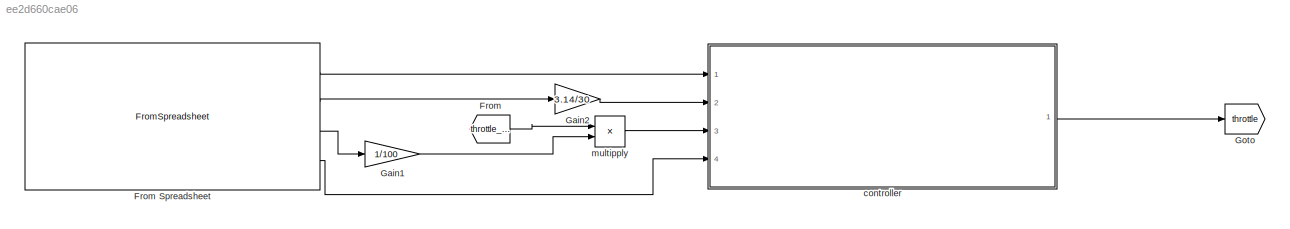
MODEL slx_ee2d660cae06
KIND model
CONFIG AbsTol = auto
CONFIG EnableMultiTasking = off
CONFIG FixedStep = auto
CONFIG MaxStep = auto
CONFIG MinStep = auto
CONFIG RelTol = 1e-3
CONFIG SampleTimeConstraint = Unconstrained
CONFIG SolverName = VariableStepAuto
CONFIG StartTime = 0.0
CONFIG StopTime = 48
BLOCK [From] From
  GotoTag = throttle_factor
  TagVisibility = global
BLOCK [FromSpreadsheet] From Spreadsheet
  FileName = <userpath>\rms stuff\projects\traction control\optimumlap_simulations\simulation_results(uff).csv
  Ports = [0, 4]
  SheetName = simulation_results(uff)
BLOCK [Gain] Gain1
  Gain = 1/100
BLOCK [Gain] Gain2
  Gain = 3.14/30
BLOCK [Goto] Goto
  GotoTag = throttle
  TagVisibility = global
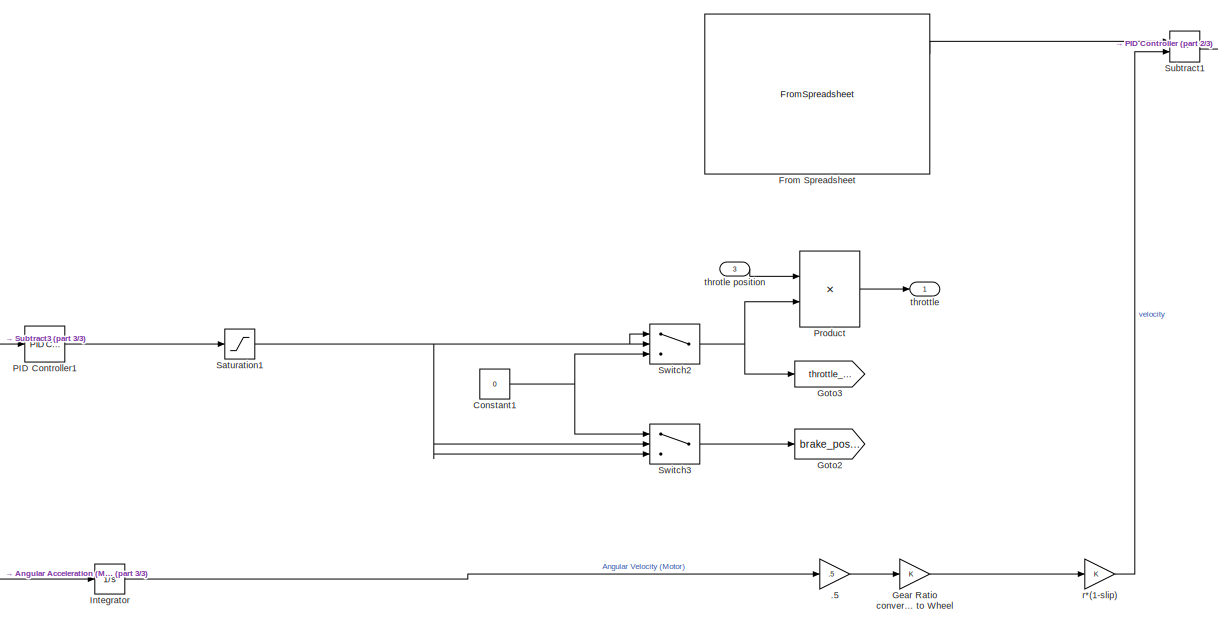
[diagram: controller - part 1/3, center side, full height]
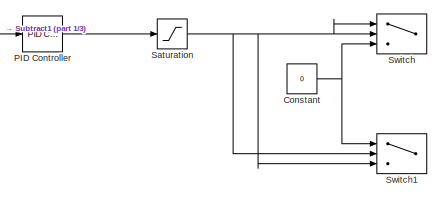
[diagram: controller - part 2/3, top right region]
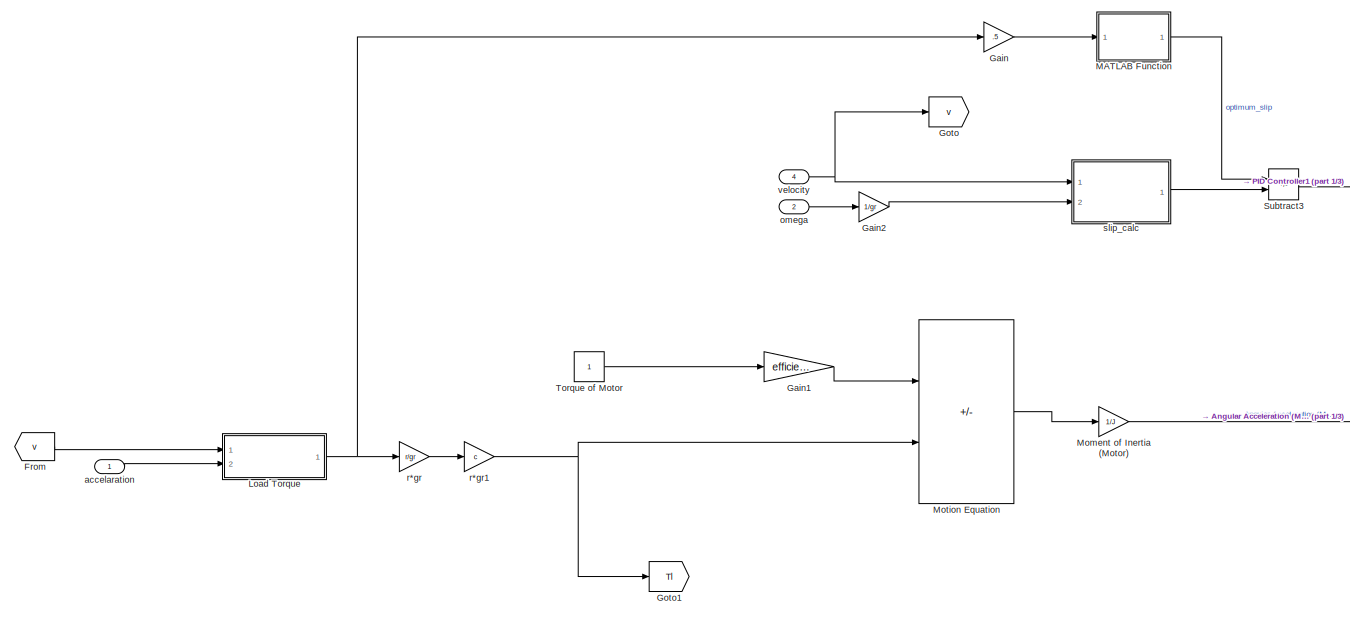
[diagram: controller - part 3/3, left side, full height]
BLOCK [SubSystem] controller
  Ports = [4, 1]
  RequestExecContextInheritance = off
BLOCK [Gain] controller/.5
  Commented = on
  Gain = .5
BLOCK [Constant] controller/Constant
  Commented = on
  Value = 0
BLOCK [Constant] controller/Constant1
  Value = 0
BLOCK [From] controller/From
  GotoTag = v
BLOCK [FromSpreadsheet] controller/From Spreadsheet
  Commented = on
  FileName = <userpath>\rms stuff\projects\traction control\optimumlap_simulations\simulation_resultsssss.csv
  Ports = [0, 3]
  SheetName = simulation_resultsssss
BLOCK [Gain] controller/Gain
  Gain = .5
BLOCK [Gain] controller/Gain1
  Commented = on
  Gain = efficiency
BLOCK [Gain] controller/Gain2
  Gain = 1/gr
BLOCK [Gain] controller/Gear Ratio conversion to Wheel 
  Commented = on
BLOCK [Goto] controller/Goto
  GotoTag = v
BLOCK [Goto] controller/Goto1
  Commented = on
  GotoTag = Tl
  TagVisibility = global
BLOCK [Goto] controller/Goto2
  GotoTag = brake_position
  TagVisibility = global
BLOCK [Goto] controller/Goto3
  GotoTag = throttle_factor
  TagVisibility = global
BLOCK [Integrator] controller/Integrator
  Commented = on
  Ports = [1, 1]
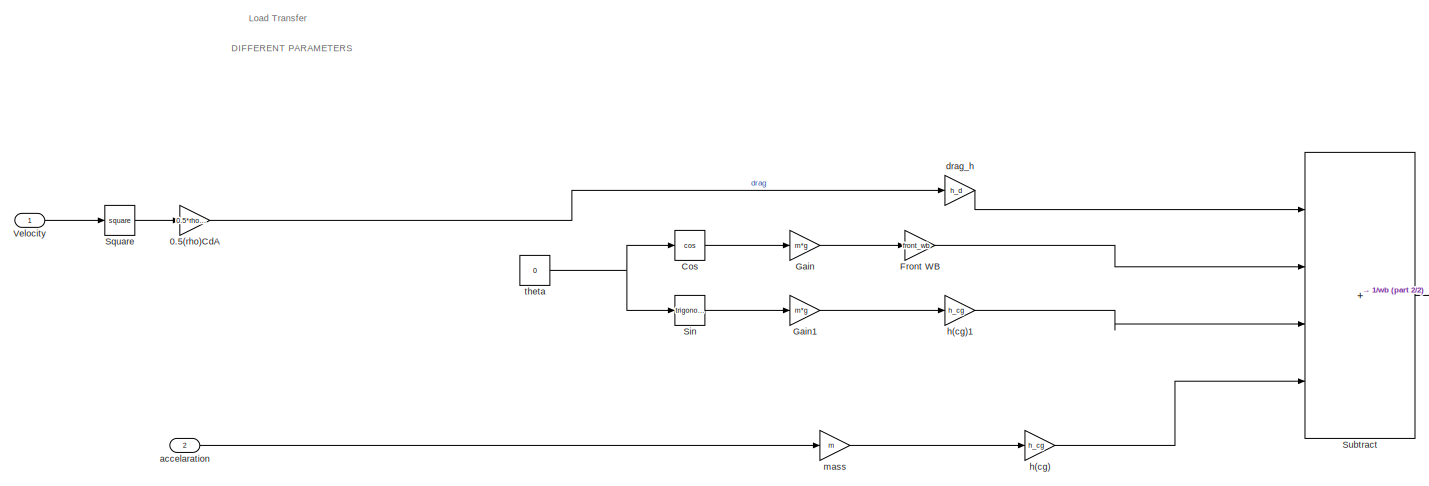
[diagram: controller/Load Torque - part 1/2, most of the canvas]
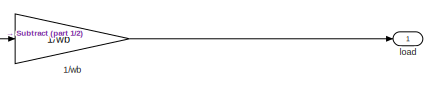
[diagram: controller/Load Torque - part 2/2, middle right region]
BLOCK [SubSystem] controller/Load Torque
  Ports = [2, 1]
  RequestExecContextInheritance = off
BLOCK [Gain] controller/Load Torque/0.5(rho)CdA
  Gain = 0.5*rho*Cd*A
BLOCK [Gain] controller/Load Torque/1//wb
  Gain = 1/wb
BLOCK [Trigonometry] controller/Load Torque/Cos
  Operator = cos
  Ports = [1, 1]
BLOCK [Gain] controller/Load Torque/Front WB
  Gain = front_wb
BLOCK [Gain] controller/Load Torque/Gain
  Gain = m*g
BLOCK [Gain] controller/Load Torque/Gain1
  Gain = m*g
BLOCK [Trigonometry] controller/Load Torque/Sin
  Ports = [1, 1]
BLOCK [Math] controller/Load Torque/Square
  Operator = square
  Ports = [1, 1]
BLOCK [Sum] controller/Load Torque/Subtract
  IconShape = rectangular
  Inputs = ++++
  Ports = [4, 1]
BLOCK [Inport] controller/Load Torque/Velocity
BLOCK [Inport] controller/Load Torque/accelaration
  Port = 2
BLOCK [Gain] controller/Load Torque/drag_h
  Gain = h_d
BLOCK [Gain] controller/Load Torque/h(cg)
  Gain = h_cg
BLOCK [Gain] controller/Load Torque/h(cg)1
  Gain = h_cg
BLOCK [Outport] controller/Load Torque/load
BLOCK [Gain] controller/Load Torque/mass
  Gain = m
BLOCK [Constant] controller/Load Torque/theta
  Value = 0
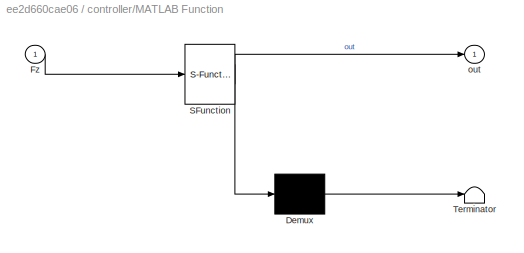
BLOCK [SubSystem] controller/MATLAB Function
  ErrorFcn = Stateflow.Translate.translate
  PermitHierarchicalResolution = ExplicitOnly
  Ports = [1, 1]
  RequestExecContextInheritance = off
  SFBlockType = MATLAB Function
  TreatAsAtomicUnit = on
BLOCK [Demux] controller/MATLAB Function/ Demux 
  Outputs = 1
  Ports = [1, 1]
BLOCK [S-Function] controller/MATLAB Function/ SFunction 
  EnableBusSupport = on
  FunctionName = sf_sfun
  PortCounts = [1 2]
  Ports = [1, 2]
  SFcnIsStateOwnerBlock = off
  SFunctionDeploymentMode = off
  Tag = Stateflow S-Function 2
BLOCK [Terminator] controller/MATLAB Function/ Terminator 
BLOCK [Inport] controller/MATLAB Function/Fz
BLOCK [Outport] controller/MATLAB Function/out
BLOCK [Gain] controller/Moment of Inertia (Motor)
  Commented = on
  Gain = 1/J
BLOCK [Sum] controller/Motion Equation
  Commented = on
  IconShape = rectangular
  Inputs = +-
  Ports = [2, 1]
BLOCK [Reference] controller/PID Controller  REF=slpidlib/PID Controller
  Commented = on
  Ports = [1, 1]
  SourceBlock = slpidlib/PID Controller
  SourceProductBaseCode = SL
  SourceType = PID 1dof
BLOCK [Reference] controller/PID Controller1  REF=slpidlib/PID Controller
  Ports = [1, 1]
  SourceBlock = slpidlib/PID Controller
  SourceProductBaseCode = SL
  SourceType = PID 1dof
BLOCK [Product] controller/Product
  Ports = [2, 1]
BLOCK [Saturate] controller/Saturation
  Commented = on
  LowerLimit = -1
  UpperLimit = 1
BLOCK [Saturate] controller/Saturation1
  LowerLimit = -1
  UpperLimit = 1
BLOCK [Sum] controller/Subtract1
  Commented = on
  IconShape = rectangular
  Inputs = +-
  Ports = [2, 1]
BLOCK [Sum] controller/Subtract3
  IconShape = rectangular
  Inputs = +-
  Ports = [2, 1]
BLOCK [Switch] controller/Switch
  Commented = on
  Criteria = u2 > Threshold
  InputSameDT = off
  SaturateOnIntegerOverflow = off
BLOCK [Switch] controller/Switch1
  Commented = on
  Criteria = u2 > Threshold
  InputSameDT = off
  SaturateOnIntegerOverflow = off
BLOCK [Switch] controller/Switch2
  Criteria = u2 > Threshold
  InputSameDT = off
  SaturateOnIntegerOverflow = off
BLOCK [Switch] controller/Switch3
  Criteria = u2 > Threshold
  InputSameDT = off
  SaturateOnIntegerOverflow = off
BLOCK [Constant] controller/Torque of Motor
  Commented = on
BLOCK [Inport] controller/accelaration
BLOCK [Inport] controller/omega
  Port = 2
BLOCK [Gain] controller/r*(1-slip)
  Commented = on
BLOCK [Gain] controller/r*gr
  Commented = on
  Gain = r/gr
BLOCK [Gain] controller/r*gr1
  Commented = on
  Gain = c
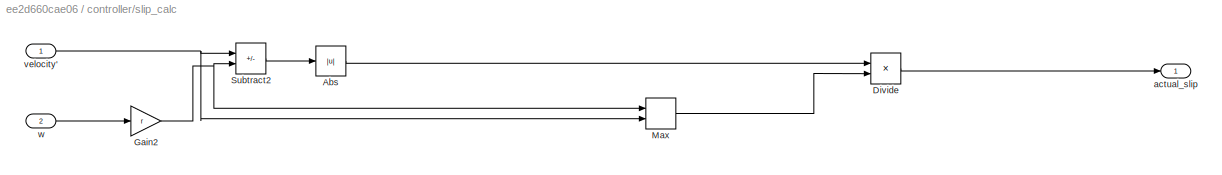
BLOCK [SubSystem] controller/slip_calc
  Ports = [2, 1]
  RequestExecContextInheritance = off
BLOCK [Abs] controller/slip_calc/Abs
  SaturateOnIntegerOverflow = off
BLOCK [Product] controller/slip_calc/Divide
  Inputs = */
  Ports = [2, 1]
BLOCK [Gain] controller/slip_calc/Gain2
  Gain = r
BLOCK [MinMax] controller/slip_calc/Max
  Function = max
  Inputs = 2
  Ports = [2, 1]
BLOCK [Sum] controller/slip_calc/Subtract2
  IconShape = rectangular
  Inputs = +-
  Ports = [2, 1]
BLOCK [Outport] controller/slip_calc/actual_slip
BLOCK [Inport] controller/slip_calc/velocity'
BLOCK [Inport] controller/slip_calc/w
  Port = 2
BLOCK [Inport] controller/throtle position
  Port = 3
BLOCK [Outport] controller/throttle
BLOCK [Inport] controller/velocity
  Port = 4
BLOCK [Product] multipply
  Inputs = **
  Ports = [2, 1]
ANNOTATION controller/Load Torque: DIFFERENT PARAMETERS
ANNOTATION controller/Load Torque: Load Transfer
LINE From Spreadsheet:1 -> controller:1
LINE From Spreadsheet:2 -> Gain2:1
LINE From Spreadsheet:3 -> Gain1:1
LINE From Spreadsheet:4 -> controller:4
LINE From:1 -> multipply:1
LINE Gain1:1 -> multipply:2
LINE Gain2:1 -> controller:2
LINE controller/.5:1 -> controller/Gear Ratio conversion to Wheel :1
NET controller/Constant1:1 -> controller/Switch2:3, controller/Switch3:1
NET controller/Constant:1 -> controller/Switch1:1, controller/Switch:3
LINE controller/From Spreadsheet:1 -> controller/Subtract1:1
LINE controller/From:1 -> controller/Load Torque:1
LINE controller/Gain1:1 -> controller/Motion Equation:1
LINE controller/Gain2:1 -> controller/slip_calc:2
LINE controller/Gain:1 -> controller/MATLAB Function:1
LINE controller/Gear Ratio conversion to Wheel :1 -> controller/r*(1-slip):1
LINE controller/Integrator:1 -> controller/.5:1
LINE controller/Load Torque/0.5(rho)CdA:1 -> controller/Load Torque/drag_h:1
LINE controller/Load Torque/1//wb:1 -> controller/Load Torque/load:1
LINE controller/Load Torque/Cos:1 -> controller/Load Torque/Gain:1
LINE controller/Load Torque/Front WB:1 -> controller/Load Torque/Subtract:2
LINE controller/Load Torque/Gain1:1 -> controller/Load Torque/h(cg)1:1
LINE controller/Load Torque/Gain:1 -> controller/Load Torque/Front WB:1
LINE controller/Load Torque/Sin:1 -> controller/Load Torque/Gain1:1
LINE controller/Load Torque/Square:1 -> controller/Load Torque/0.5(rho)CdA:1
LINE controller/Load Torque/Subtract:1 -> controller/Load Torque/1//wb:1
LINE controller/Load Torque/Velocity:1 -> controller/Load Torque/Square:1
LINE controller/Load Torque/accelaration:1 -> controller/Load Torque/mass:1
LINE controller/Load Torque/drag_h:1 -> controller/Load Torque/Subtract:1
LINE controller/Load Torque/h(cg)1:1 -> controller/Load Torque/Subtract:3
LINE controller/Load Torque/h(cg):1 -> controller/Load Torque/Subtract:4
LINE controller/Load Torque/mass:1 -> controller/Load Torque/h(cg):1
NET controller/Load Torque/theta:1 -> controller/Load Torque/Cos:1, controller/Load Torque/Sin:1
NET controller/Load Torque:1 -> controller/Gain:1, controller/r*gr:1
LINE controller/MATLAB Function:1 -> controller/Subtract3:1
LINE controller/Moment of Inertia (Motor):1 -> controller/Integrator:1
LINE controller/Motion Equation:1 -> controller/Moment of Inertia (Motor):1
LINE controller/PID Controller1:1 -> controller/Saturation1:1
LINE controller/PID Controller:1 -> controller/Saturation:1
LINE controller/Product:1 -> controller/throttle:1
NET controller/Saturation1:1 -> controller/Switch2:1, controller/Switch2:2, controller/Switch3:2, controller/Switch3:3
NET controller/Saturation:1 -> controller/Switch1:2, controller/Switch1:3, controller/Switch:1, controller/Switch:2
LINE controller/Subtract1:1 -> controller/PID Controller:1
LINE controller/Subtract3:1 -> controller/PID Controller1:1
NET controller/Switch2:1 -> controller/Goto3:1, controller/Product:2
LINE controller/Switch3:1 -> controller/Goto2:1
LINE controller/Torque of Motor:1 -> controller/Gain1:1
LINE controller/accelaration:1 -> controller/Load Torque:2
LINE controller/omega:1 -> controller/Gain2:1
LINE controller/r*(1-slip):1 -> controller/Subtract1:2
NET controller/r*gr1:1 -> controller/Goto1:1, controller/Motion Equation:2
LINE controller/r*gr:1 -> controller/r*gr1:1
LINE controller/slip_calc/Abs:1 -> controller/slip_calc/Divide:1
LINE controller/slip_calc/Divide:1 -> controller/slip_calc/actual_slip:1
NET controller/slip_calc/Gain2:1 -> controller/slip_calc/Max:1, controller/slip_calc/Subtract2:2
LINE controller/slip_calc/Max:1 -> controller/slip_calc/Divide:2
LINE controller/slip_calc/Subtract2:1 -> controller/slip_calc/Abs:1
NET controller/slip_calc/velocity':1 -> controller/slip_calc/Max:2, controller/slip_calc/Subtract2:1
LINE controller/slip_calc/w:1 -> controller/slip_calc/Gain2:1
LINE controller/slip_calc:1 -> controller/Subtract3:2
LINE controller/throtle position:1 -> controller/Product:1
NET controller/velocity:1 -> controller/Goto:1, controller/slip_calc:1
LINE controller:1 -> Goto:1
LINE multipply:1 -> controller:3
note: NET lines group one-source signal fan-out (src -> all destinations, sorted); 1:1 wires keep LINE
CHART controller/MATLAB Function states=1 transitions=1
  STATE_LABEL 'eML_blk_kernel()'
  STATE_LABEL 'SCRIPT:\nfunction out=packeja(Fz)\n    \n    a1=-2.13*(10^-5);\n    a2=1.144;\n    a3=4.96*(10^-5);\n    a4=.226;\n    a5=6.9*(10^-5);\n    a6=-6*(10^-9);\n    a7=5.6*(10*(-5));\n    a8=.486;\n    \n    lambda=0:.005:1;\n    Cx=1.65;\n    Dx=a1*Fz*Fz+a2*Fz;\n    func1=(a3*Fz*Fz+a4*Fz)*exp(-a5*Fz);\n    Bx=func1/(Cx*Dx);\n    Ex=a6*Fz*Fz+a7*Fz+a8;\n    G=Bx*lambda;\n    func2=G*(1-Ex)+Ex*atan(G);\n    Fx=Dx*sin(Cx*ata...<+91ch>'
CHART  states=0 transitions=0
